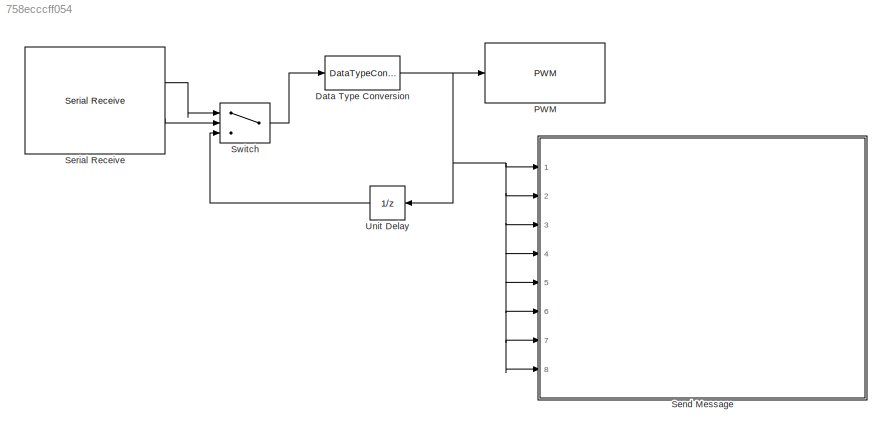
MODEL slx_758ecccff054
KIND model
BLOCK [DataTypeConversion] Data Type Conversion
  RndMeth = Floor
BLOCK [Reference] PWM  REF=arduinolib/PWM
  Ports = [1]
  SourceBlock = arduinolib/PWM
  SourceType = Arduino PWM
  pinNumber = 5
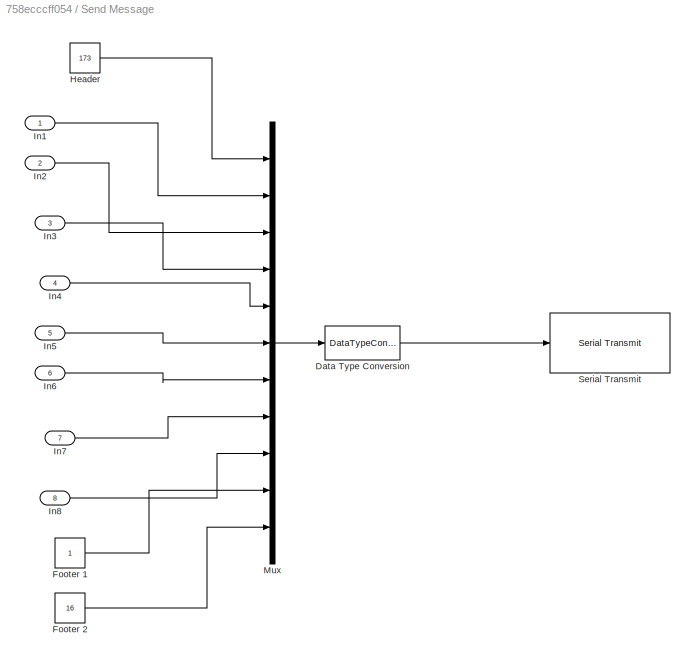
BLOCK [SubSystem] Send Message
  Ports = [8]
  RequestExecContextInheritance = off
BLOCK [DataTypeConversion] Send Message/Data Type Conversion
  RndMeth = Floor
BLOCK [Constant] Send Message/Footer 1
BLOCK [Constant] Send Message/Footer 2
  Value = 16
BLOCK [Constant] Send Message/Header
  Value = 173
BLOCK [Inport] Send Message/In1
  IconDisplay = Port number
BLOCK [Inport] Send Message/In2
  IconDisplay = Port number
  Port = 2
BLOCK [Inport] Send Message/In3
  IconDisplay = Port number
  Port = 3
BLOCK [Inport] Send Message/In4
  IconDisplay = Port number
  Port = 4
BLOCK [Inport] Send Message/In5
  IconDisplay = Port number
  Port = 5
BLOCK [Inport] Send Message/In6
  IconDisplay = Port number
  Port = 6
BLOCK [Inport] Send Message/In7
  IconDisplay = Port number
  Port = 7
BLOCK [Inport] Send Message/In8
  IconDisplay = Port number
  Port = 8
BLOCK [Mux] Send Message/Mux
  DisplayOption = bar
  Inputs = 11
  Ports = [11, 1]
BLOCK [Reference] Send Message/Serial Transmit  REF=arduinolib/Serial Transmit
  Ports = [1]
  SourceBlock = arduinolib/Serial Transmit
  SourceType = Arduino Serial Transmit
  portNumber = 1
BLOCK [Reference] Serial Receive  REF=arduinolib/Serial Receive
  Ports = [0, 2]
  SourceBlock = arduinolib/Serial Receive
  SourceType = Arduino Serial Receive
  portNumber = 1
  sampleTime = 0.02
  showOutStatus = on
BLOCK [Switch] Switch
  Criteria = u2 > Threshold
  InputSameDT = off
  SaturateOnIntegerOverflow = off
BLOCK [UnitDelay] Unit Delay
  InputProcessing = Elements as channels (sample based)
  SampleTime = -1
NET Data Type Conversion:1 -> PWM:1, Send Message:1, Send Message:2, Send Message:3, Send Message:4, Send Message:5, Send Message:6, Send Message:7, Send Message:8, Unit Delay:1
LINE Send Message/Data Type Conversion:1 -> Send Message/Serial Transmit:1
LINE Send Message/Footer 1:1 -> Send Message/Mux:10
LINE Send Message/Footer 2:1 -> Send Message/Mux:11
LINE Send Message/Header:1 -> Send Message/Mux:1
LINE Send Message/In1:1 -> Send Message/Mux:2
LINE Send Message/In2:1 -> Send Message/Mux:3
LINE Send Message/In3:1 -> Send Message/Mux:4
LINE Send Message/In4:1 -> Send Message/Mux:5
LINE Send Message/In5:1 -> Send Message/Mux:6
LINE Send Message/In6:1 -> Send Message/Mux:7
LINE Send Message/In7:1 -> Send Message/Mux:8
LINE Send Message/In8:1 -> Send Message/Mux:9
LINE Send Message/Mux:1 -> Send Message/Data Type Conversion:1
LINE Serial Receive:1 -> Switch:1
LINE Serial Receive:2 -> Switch:2
LINE Switch:1 -> Data Type Conversion:1
LINE Unit Delay:1 -> Switch:3
note: NET lines group one-source signal fan-out (src -> all destinations, sorted); 1:1 wires keep LINE
